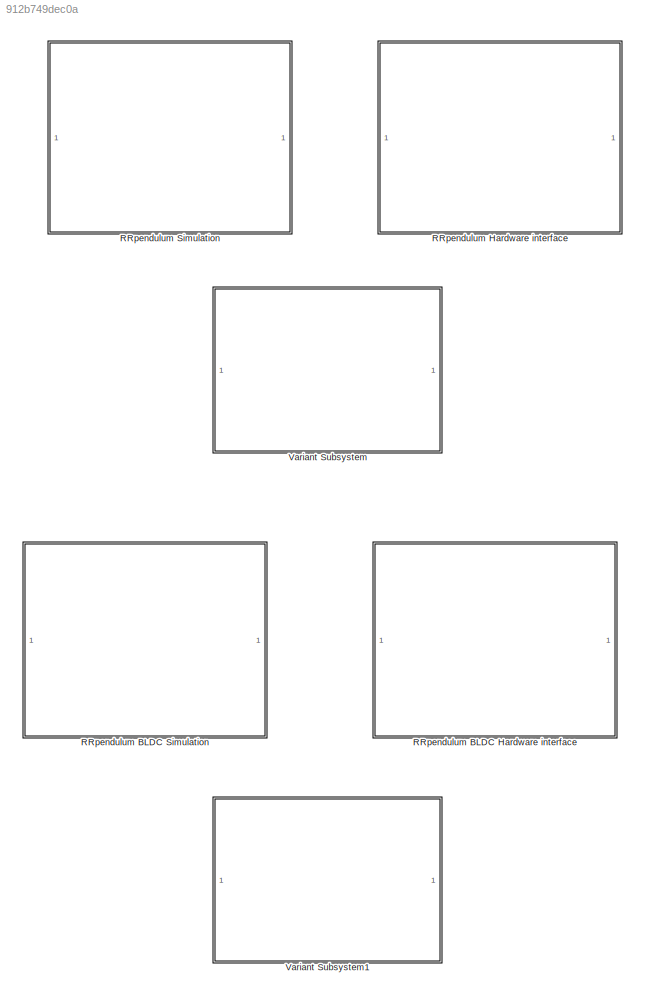
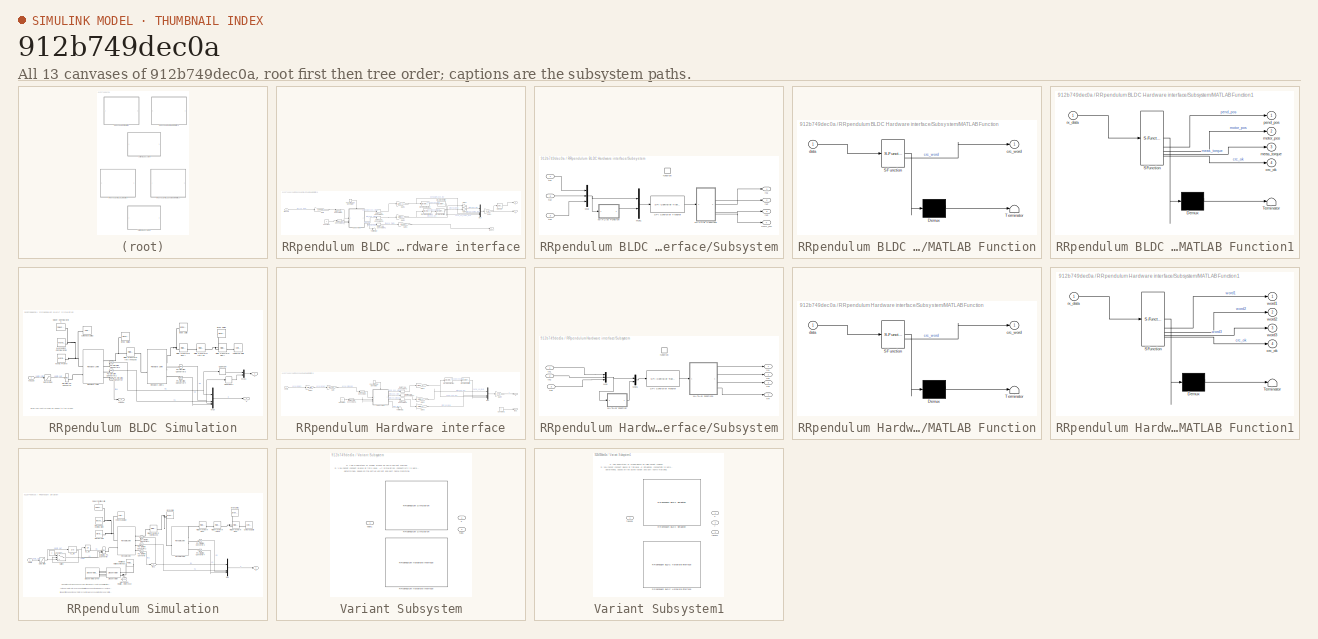
[diagram: thumbnail index - all 13 canvases of the model, root first then tree order]
MODEL slx_912b749dec0a
KIND library
CONFIG AbsTol = auto
CONFIG EnableMultiTasking = off
CONFIG FixedStep = auto
CONFIG MaxStep = auto
CONFIG MinStep = auto
CONFIG RelTol = 1e-3
CONFIG SampleTimeConstraint = Unconstrained
CONFIG SolverName = VariableStepAuto
CONFIG StartTime = 0.0
CONFIG StopTime = 10.0
BLOCK [SubSystem] RRpendulum BLDC Hardware interface
  VariantControl = (codegen)
BLOCK [Constant] RRpendulum BLDC Hardware interface/Constant
  OutDataTypeStr = int16
  Value = 0
BLOCK [DataTypeConversion] RRpendulum BLDC Hardware interface/Data Type Conversion
  OutDataTypeStr = int16
  RndMeth = Floor
  SaturateOnIntegerOverflow = off
BLOCK [DataTypeConversion] RRpendulum BLDC Hardware interface/Data Type Conversion1
  OutDataTypeStr = double
  RndMeth = Floor
  SaturateOnIntegerOverflow = off
BLOCK [DataTypeConversion] RRpendulum BLDC Hardware interface/Data Type Conversion2
  OutDataTypeStr = double
  RndMeth = Floor
  SaturateOnIntegerOverflow = off
BLOCK [DataTypeConversion] RRpendulum BLDC Hardware interface/Data Type Conversion3
  OutDataTypeStr = int16
  RndMeth = Floor
  SaturateOnIntegerOverflow = off
BLOCK [DataTypeConversion] RRpendulum BLDC Hardware interface/Data Type Conversion5
  OutDataTypeStr = double
  RndMeth = Floor
  SaturateOnIntegerOverflow = off
BLOCK [Reference] RRpendulum BLDC Hardware interface/Discrete Derivative  REF=simulink/Discrete/Discrete Derivative
  SourceBlock = simulink/Discrete/Discrete Derivative
  SourceType = Discrete Derivative
BLOCK [Reference] RRpendulum BLDC Hardware interface/Discrete Derivative1  REF=simulink/Discrete/Discrete Derivative
  SourceBlock = simulink/Discrete/Discrete Derivative
  SourceType = Discrete Derivative
BLOCK [DiscreteFir] RRpendulum BLDC Hardware interface/Discrete FIR Filter
  CloseFcn = dspblkCoreblockFVToolHelper(gcbh,'close');
  Coefficients = ones(1,Nv2Filt)/Nv2Filt
  CopyFcn = dspblkCoreblockFVToolHelper(gcbh,'copy');
  DeleteFcn = dspblkCoreblockFVToolHelper(gcbh,'close');
  InputPortMap = u0
  LoadFcn = dspblkCoreblockFVToolHelper(gcbh,'load');
  ModelCloseFcn = dspblkCoreblockFVToolHelper(gcbh,'close');
  OutputPortMap = o0
  PostSaveFcn = dspblkCoreblockFVToolHelper(gcbh,'postsave');
  PreSaveFcn = dspblkCoreblockFVToolHelper(gcbh,'presave');
BLOCK [DiscreteFir] RRpendulum BLDC Hardware interface/Discrete FIR Filter1
  CloseFcn = dspblkCoreblockFVToolHelper(gcbh,'close');
  Coefficients = ones(1,Nv1Filt)/Nv1Filt
  CopyFcn = dspblkCoreblockFVToolHelper(gcbh,'copy');
  DeleteFcn = dspblkCoreblockFVToolHelper(gcbh,'close');
  InputPortMap = u0
  LoadFcn = dspblkCoreblockFVToolHelper(gcbh,'load');
  ModelCloseFcn = dspblkCoreblockFVToolHelper(gcbh,'close');
  OutputPortMap = o0
  PostSaveFcn = dspblkCoreblockFVToolHelper(gcbh,'postsave');
  PreSaveFcn = dspblkCoreblockFVToolHelper(gcbh,'presave');
BLOCK [FunctionCallGenerator] RRpendulum BLDC Hardware interface/Function-Call Generator
  SampleTime = t_sample
BLOCK [Gain] RRpendulum BLDC Hardware interface/Gain
  Gain = -100000
BLOCK [Gain] RRpendulum BLDC Hardware interface/Gain1
  Gain = 1/enc_cpt
BLOCK [Gain] RRpendulum BLDC Hardware interface/Gain2
  Gain = 1/mot_cpt
BLOCK [Gain] RRpendulum BLDC Hardware interface/Gain4
  Gain = 2*pi
BLOCK [Gain] RRpendulum BLDC Hardware interface/Gain6
  Gain = -1/100000
BLOCK [Gain] RRpendulum BLDC Hardware interface/Gain7
  Gain = -1
BLOCK [Gain] RRpendulum BLDC Hardware interface/Gain8
  Gain = -1
BLOCK [Mux] RRpendulum BLDC Hardware interface/Mux
  DisplayOption = bar
BLOCK [Selector] RRpendulum BLDC Hardware interface/Selector
  IndexOptions = Index vector (dialog)
  Indices = [1 3]
  InputPortWidth = 4
  OutputSizes = 1
BLOCK [SubSystem] RRpendulum BLDC Hardware interface/Subsystem
BLOCK [Outport] RRpendulum BLDC Hardware interface/Subsystem/CRC_OK
  Port = 4
BLOCK [SubSystem] RRpendulum BLDC Hardware interface/Subsystem/MATLAB Function
  ErrorFcn = Stateflow.Translate.translate
  PermitHierarchicalResolution = ExplicitOnly
  SFBlockType = MATLAB Function
  TreatAsAtomicUnit = on
BLOCK [Demux] RRpendulum BLDC Hardware interface/Subsystem/MATLAB Function/ Demux 
  Outputs = 1
BLOCK [S-Function] RRpendulum BLDC Hardware interface/Subsystem/MATLAB Function/ SFunction 
  EnableBusSupport = off
  FunctionName = sf_sfun
  PortCounts = [1 2]
  SFcnIsStateOwnerBlock = off
  SFunctionDeploymentMode = off
  Tag = Stateflow S-Function 3
BLOCK [Terminator] RRpendulum BLDC Hardware interface/Subsystem/MATLAB Function/ Terminator 
BLOCK [Outport] RRpendulum BLDC Hardware interface/Subsystem/MATLAB Function/crc_word
BLOCK [Inport] RRpendulum BLDC Hardware interface/Subsystem/MATLAB Function/data
BLOCK [SubSystem] RRpendulum BLDC Hardware interface/Subsystem/MATLAB Function1
  ErrorFcn = Stateflow.Translate.translate
  PermitHierarchicalResolution = ExplicitOnly
  SFBlockType = MATLAB Function
  TreatAsAtomicUnit = on
BLOCK [Demux] RRpendulum BLDC Hardware interface/Subsystem/MATLAB Function1/ Demux 
  Outputs = 1
BLOCK [S-Function] RRpendulum BLDC Hardware interface/Subsystem/MATLAB Function1/ SFunction 
  EnableBusSupport = off
  FunctionName = sf_sfun
  PortCounts = [1 5]
  SFcnIsStateOwnerBlock = off
  SFunctionDeploymentMode = off
  Tag = Stateflow S-Function 4
BLOCK [Terminator] RRpendulum BLDC Hardware interface/Subsystem/MATLAB Function1/ Terminator 
BLOCK [Outport] RRpendulum BLDC Hardware interface/Subsystem/MATLAB Function1/crc_ok
  Port = 4
BLOCK [Outport] RRpendulum BLDC Hardware interface/Subsystem/MATLAB Function1/meas_torque
  Port = 3
BLOCK [Outport] RRpendulum BLDC Hardware interface/Subsystem/MATLAB Function1/motor_pos
  Port = 2
BLOCK [Outport] RRpendulum BLDC Hardware interface/Subsystem/MATLAB Function1/pend_pos
BLOCK [Inport] RRpendulum BLDC Hardware interface/Subsystem/MATLAB Function1/rx_data
BLOCK [Mux] RRpendulum BLDC Hardware interface/Subsystem/Mux
  DisplayOption = bar
  Inputs = 3
BLOCK [Mux] RRpendulum BLDC Hardware interface/Subsystem/Mux1
  DisplayOption = bar
  Inputs = 2
BLOCK [Reference] RRpendulum BLDC Hardware interface/Subsystem/SPI Controller Transfer  REF=raspberrypiCommlib/SPI Controller Transfer
  SourceBlock = raspberrypiCommlib/SPI Controller Transfer
  SourceType = codertarget.raspi.internal.SPIMasterTransfer
BLOCK [TriggerPort] RRpendulum BLDC Hardware interface/Subsystem/function
  StatesWhenEnabling = held
  TriggerType = function-call
  VariantControl = (inherit)
BLOCK [Outport] RRpendulum BLDC Hardware interface/Subsystem/rx1
BLOCK [Outport] RRpendulum BLDC Hardware interface/Subsystem/rx2
  Port = 2
BLOCK [Outport] RRpendulum BLDC Hardware interface/Subsystem/rx3
  Port = 3
BLOCK [Inport] RRpendulum BLDC Hardware interface/Subsystem/tx1
BLOCK [Inport] RRpendulum BLDC Hardware interface/Subsystem/tx2
  Port = 2
BLOCK [Inport] RRpendulum BLDC Hardware interface/Subsystem/tx3
  Port = 3
BLOCK [Terminator] RRpendulum BLDC Hardware interface/Terminator
BLOCK [Outport] RRpendulum BLDC Hardware interface/tau1cv
  Port = 3
BLOCK [Inport] RRpendulum BLDC Hardware interface/tau1sp
BLOCK [Outport] RRpendulum BLDC Hardware interface/x
BLOCK [Outport] RRpendulum BLDC Hardware interface/y
  Port = 2
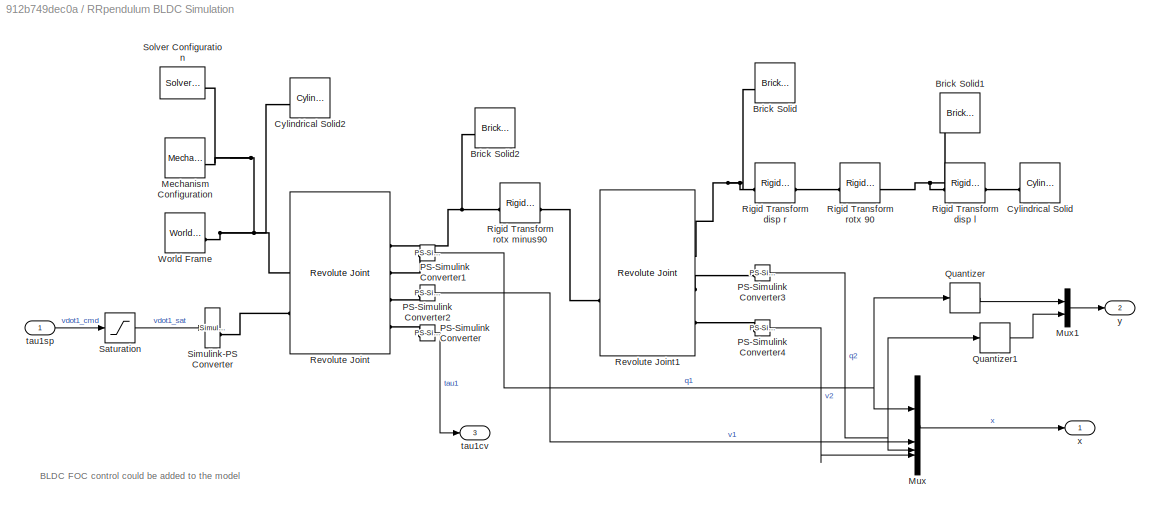
BLOCK [SubSystem] RRpendulum BLDC Simulation
  VariantControl = (sim)
BLOCK [Reference] RRpendulum BLDC Simulation/Brick Solid  REF=sm_lib/Body Elements/Brick Solid
  SourceBlock = sm_lib/Body Elements/Brick Solid
  SourceType = Brick Solid
BLOCK [Reference] RRpendulum BLDC Simulation/Brick Solid1  REF=sm_lib/Body Elements/Brick Solid
  SourceBlock = sm_lib/Body Elements/Brick Solid
  SourceType = Brick Solid
BLOCK [Reference] RRpendulum BLDC Simulation/Brick Solid2  REF=sm_lib/Body Elements/Brick Solid
  SourceBlock = sm_lib/Body Elements/Brick Solid
  SourceType = Brick Solid
BLOCK [Reference] RRpendulum BLDC Simulation/Cylindrical Solid  REF=sm_lib/Body Elements/Cylindrical Solid
  NameLocation = top
  SourceBlock = sm_lib/Body Elements/Cylindrical Solid
  SourceType = Cylindrical Solid
BLOCK [Reference] RRpendulum BLDC Simulation/Cylindrical Solid2  REF=sm_lib/Body Elements/Cylindrical Solid
  SourceBlock = sm_lib/Body Elements/Cylindrical Solid
  SourceType = Cylindrical Solid
BLOCK [Reference] RRpendulum BLDC Simulation/Mechanism Configuration  REF=sm_lib/Utilities/Mechanism
Configuration
  SourceBlock = sm_lib/Utilities/Mechanism\nConfiguration
  SourceType = Mechanism\nConfiguration
BLOCK [Mux] RRpendulum BLDC Simulation/Mux
  DisplayOption = bar
BLOCK [Mux] RRpendulum BLDC Simulation/Mux1
  DisplayOption = bar
  Inputs = 2
BLOCK [Reference] RRpendulum BLDC Simulation/PS-Simulink Converter  REF=nesl_utility/PS-Simulink
Converter
  SourceBlock = nesl_utility/PS-Simulink\nConverter
  SourceType = PS-Simulink\nConverter
BLOCK [Reference] RRpendulum BLDC Simulation/PS-Simulink Converter1  REF=nesl_utility/PS-Simulink
Converter
  SourceBlock = nesl_utility/PS-Simulink\nConverter
  SourceType = PS-Simulink\nConverter
BLOCK [Reference] RRpendulum BLDC Simulation/PS-Simulink Converter2  REF=nesl_utility/PS-Simulink
Converter
  SourceBlock = nesl_utility/PS-Simulink\nConverter
  SourceType = PS-Simulink\nConverter
BLOCK [Reference] RRpendulum BLDC Simulation/PS-Simulink Converter3  REF=nesl_utility/PS-Simulink
Converter
  SourceBlock = nesl_utility/PS-Simulink\nConverter
  SourceType = PS-Simulink\nConverter
BLOCK [Reference] RRpendulum BLDC Simulation/PS-Simulink Converter4  REF=nesl_utility/PS-Simulink
Converter
  SourceBlock = nesl_utility/PS-Simulink\nConverter
  SourceType = PS-Simulink\nConverter
BLOCK [Quantizer] RRpendulum BLDC Simulation/Quantizer
  QuantizationInterval = 2*pi/qi_cpt(1)
BLOCK [Quantizer] RRpendulum BLDC Simulation/Quantizer1
  QuantizationInterval = 2*pi/qi_cpt(2)
BLOCK [Reference] RRpendulum BLDC Simulation/Revolute Joint  REF=sm_lib/Joints/Revolute Joint
  SourceBlock = sm_lib/Joints/Revolute Joint
  SourceType = Revolute Joint
BLOCK [Reference] RRpendulum BLDC Simulation/Revolute Joint1  REF=sm_lib/Joints/Revolute Joint
  SourceBlock = sm_lib/Joints/Revolute Joint
  SourceType = Revolute Joint
BLOCK [Reference] RRpendulum BLDC Simulation/Rigid Transform disp l  REF=sm_lib/Frames and
Transforms/Rigid
Transform
  SourceBlock = sm_lib/Frames and\nTransforms/Rigid\nTransform
  SourceType = Rigid\nTransform
BLOCK [Reference] RRpendulum BLDC Simulation/Rigid Transform disp r  REF=sm_lib/Frames and
Transforms/Rigid
Transform
  SourceBlock = sm_lib/Frames and\nTransforms/Rigid\nTransform
  SourceType = Rigid\nTransform
BLOCK [Reference] RRpendulum BLDC Simulation/Rigid Transform rotx 90  REF=sm_lib/Frames and
Transforms/Rigid
Transform
  SourceBlock = sm_lib/Frames and\nTransforms/Rigid\nTransform
  SourceType = Rigid\nTransform
BLOCK [Reference] RRpendulum BLDC Simulation/Rigid Transform rotx minus90  REF=sm_lib/Frames and
Transforms/Rigid
Transform
  SourceBlock = sm_lib/Frames and\nTransforms/Rigid\nTransform
  SourceType = Rigid\nTransform
BLOCK [Saturate] RRpendulum BLDC Simulation/Saturation
  LowerLimit = -satlimits(1)
  UpperLimit = satlimits(1)
BLOCK [Reference] RRpendulum BLDC Simulation/Simulink-PS Converter  REF=nesl_utility/Simulink-PS
Converter
  SourceBlock = nesl_utility/Simulink-PS\nConverter
  SourceType = Simulink-PS\nConverter
BLOCK [Reference] RRpendulum BLDC Simulation/Solver Configuration  REF=nesl_utility/Solver
Configuration
  SourceBlock = nesl_utility/Solver\nConfiguration
  SourceType = Solver\nConfiguration
BLOCK [Reference] RRpendulum BLDC Simulation/World Frame  REF=sm_lib/Frames and
Transforms/World Frame
  SourceBlock = sm_lib/Frames and\nTransforms/World Frame
  SourceType = World Frame
BLOCK [Outport] RRpendulum BLDC Simulation/tau1cv
  Port = 3
BLOCK [Inport] RRpendulum BLDC Simulation/tau1sp
BLOCK [Outport] RRpendulum BLDC Simulation/x
  PortDimensions = [4,1]
BLOCK [Outport] RRpendulum BLDC Simulation/y
  Port = 2
  PortDimensions = [2,1]
BLOCK [SubSystem] RRpendulum Hardware interface
  VariantControl = (codegen)
BLOCK [Constant] RRpendulum Hardware interface/Constant
  OutDataTypeStr = int16
  Value = 0
BLOCK [Constant] RRpendulum Hardware interface/Constant1
  Value = 0
BLOCK [DataTypeConversion] RRpendulum Hardware interface/Data Type Conversion
  OutDataTypeStr = int16
  RndMeth = Floor
  SaturateOnIntegerOverflow = off
BLOCK [DataTypeConversion] RRpendulum Hardware interface/Data Type Conversion1
  OutDataTypeStr = double
  RndMeth = Floor
  SaturateOnIntegerOverflow = off
BLOCK [DataTypeConversion] RRpendulum Hardware interface/Data Type Conversion2
  OutDataTypeStr = double
  RndMeth = Floor
  SaturateOnIntegerOverflow = off
BLOCK [DataTypeConversion] RRpendulum Hardware interface/Data Type Conversion4
  OutDataTypeStr = double
  RndMeth = Floor
  SaturateOnIntegerOverflow = off
BLOCK [DataTypeConversion] RRpendulum Hardware interface/Data Type Conversion5
  OutDataTypeStr = int16
  RndMeth = Floor
  SaturateOnIntegerOverflow = off
BLOCK [Reference] RRpendulum Hardware interface/Discrete Derivative  REF=simulink/Discrete/Discrete Derivative
  SourceBlock = simulink/Discrete/Discrete Derivative
  SourceType = Discrete Derivative
BLOCK [DiscreteFir] RRpendulum Hardware interface/Discrete FIR Filter
  CloseFcn = dspblkCoreblockFVToolHelper(gcbh,'close');
  Coefficients = ones(1,Nv2filt)/Nv2filt
  CopyFcn = dspblkCoreblockFVToolHelper(gcbh,'copy');
  DeleteFcn = dspblkCoreblockFVToolHelper(gcbh,'close');
  InputPortMap = u0
  LoadFcn = dspblkCoreblockFVToolHelper(gcbh,'load');
  ModelCloseFcn = dspblkCoreblockFVToolHelper(gcbh,'close');
  OutputPortMap = o0
  PostSaveFcn = dspblkCoreblockFVToolHelper(gcbh,'postsave');
  PreSaveFcn = dspblkCoreblockFVToolHelper(gcbh,'presave');
BLOCK [FunctionCallGenerator] RRpendulum Hardware interface/Function-Call Generator
  SampleTime = t_sample
BLOCK [Gain] RRpendulum Hardware interface/Gain
  Gain = mot_spt
BLOCK [Gain] RRpendulum Hardware interface/Gain1
  Gain = 1/enc_cpt
BLOCK [Gain] RRpendulum Hardware interface/Gain2
  Gain = 1/mot_spt
BLOCK [Gain] RRpendulum Hardware interface/Gain3
  Gain = 1/mot_spt
BLOCK [Gain] RRpendulum Hardware interface/Gain4
  Gain = 2*pi
BLOCK [Gain] RRpendulum Hardware interface/Gain5
  Gain = 1/(2*pi)
BLOCK [Mux] RRpendulum Hardware interface/Mux
  DisplayOption = bar
BLOCK [SubSystem] RRpendulum Hardware interface/Subsystem
BLOCK [SubSystem] RRpendulum Hardware interface/Subsystem/MATLAB Function
  ErrorFcn = Stateflow.Translate.translate
  PermitHierarchicalResolution = ExplicitOnly
  SFBlockType = MATLAB Function
  TreatAsAtomicUnit = on
BLOCK [Demux] RRpendulum Hardware interface/Subsystem/MATLAB Function/ Demux 
  Outputs = 1
BLOCK [S-Function] RRpendulum Hardware interface/Subsystem/MATLAB Function/ SFunction 
  EnableBusSupport = off
  FunctionName = sf_sfun
  PortCounts = [1 2]
  SFcnIsStateOwnerBlock = off
  SFunctionDeploymentMode = off
  Tag = Stateflow S-Function 1
BLOCK [Terminator] RRpendulum Hardware interface/Subsystem/MATLAB Function/ Terminator 
BLOCK [Outport] RRpendulum Hardware interface/Subsystem/MATLAB Function/crc_word
BLOCK [Inport] RRpendulum Hardware interface/Subsystem/MATLAB Function/data
BLOCK [SubSystem] RRpendulum Hardware interface/Subsystem/MATLAB Function1
  ErrorFcn = Stateflow.Translate.translate
  PermitHierarchicalResolution = ExplicitOnly
  SFBlockType = MATLAB Function
  TreatAsAtomicUnit = on
BLOCK [Demux] RRpendulum Hardware interface/Subsystem/MATLAB Function1/ Demux 
  Outputs = 1
BLOCK [S-Function] RRpendulum Hardware interface/Subsystem/MATLAB Function1/ SFunction 
  EnableBusSupport = off
  FunctionName = sf_sfun
  PortCounts = [1 5]
  SFcnIsStateOwnerBlock = off
  SFunctionDeploymentMode = off
  Tag = Stateflow S-Function 2
BLOCK [Terminator] RRpendulum Hardware interface/Subsystem/MATLAB Function1/ Terminator 
BLOCK [Outport] RRpendulum Hardware interface/Subsystem/MATLAB Function1/crc_ok
  Port = 4
BLOCK [Inport] RRpendulum Hardware interface/Subsystem/MATLAB Function1/rx_data
BLOCK [Outport] RRpendulum Hardware interface/Subsystem/MATLAB Function1/word1
BLOCK [Outport] RRpendulum Hardware interface/Subsystem/MATLAB Function1/word2
  Port = 2
BLOCK [Outport] RRpendulum Hardware interface/Subsystem/MATLAB Function1/word3
  Port = 3
BLOCK [Mux] RRpendulum Hardware interface/Subsystem/Mux
  DisplayOption = bar
  Inputs = 3
BLOCK [Mux] RRpendulum Hardware interface/Subsystem/Mux1
  DisplayOption = bar
  Inputs = 2
BLOCK [Reference] RRpendulum Hardware interface/Subsystem/SPI Controller Transfer  REF=raspberrypiCommlib/SPI Controller Transfer
  SourceBlock = raspberrypiCommlib/SPI Controller Transfer
  SourceType = codertarget.raspi.internal.SPIMasterTransfer
BLOCK [TriggerPort] RRpendulum Hardware interface/Subsystem/function
  StatesWhenEnabling = held
  TriggerType = function-call
  VariantControl = (inherit)
BLOCK [Outport] RRpendulum Hardware interface/Subsystem/rx1
BLOCK [Outport] RRpendulum Hardware interface/Subsystem/rx2
  Port = 2
BLOCK [Outport] RRpendulum Hardware interface/Subsystem/rx3
  Port = 3
BLOCK [Outport] RRpendulum Hardware interface/Subsystem/rx4
  Port = 4
BLOCK [Inport] RRpendulum Hardware interface/Subsystem/tx1
BLOCK [Inport] RRpendulum Hardware interface/Subsystem/tx2
  Port = 2
BLOCK [Inport] RRpendulum Hardware interface/Subsystem/tx3
  Port = 3
BLOCK [Terminator] RRpendulum Hardware interface/Terminator1
BLOCK [Outport] RRpendulum Hardware interface/tau1
  Port = 2
BLOCK [Inport] RRpendulum Hardware interface/vdot1
BLOCK [Outport] RRpendulum Hardware interface/x
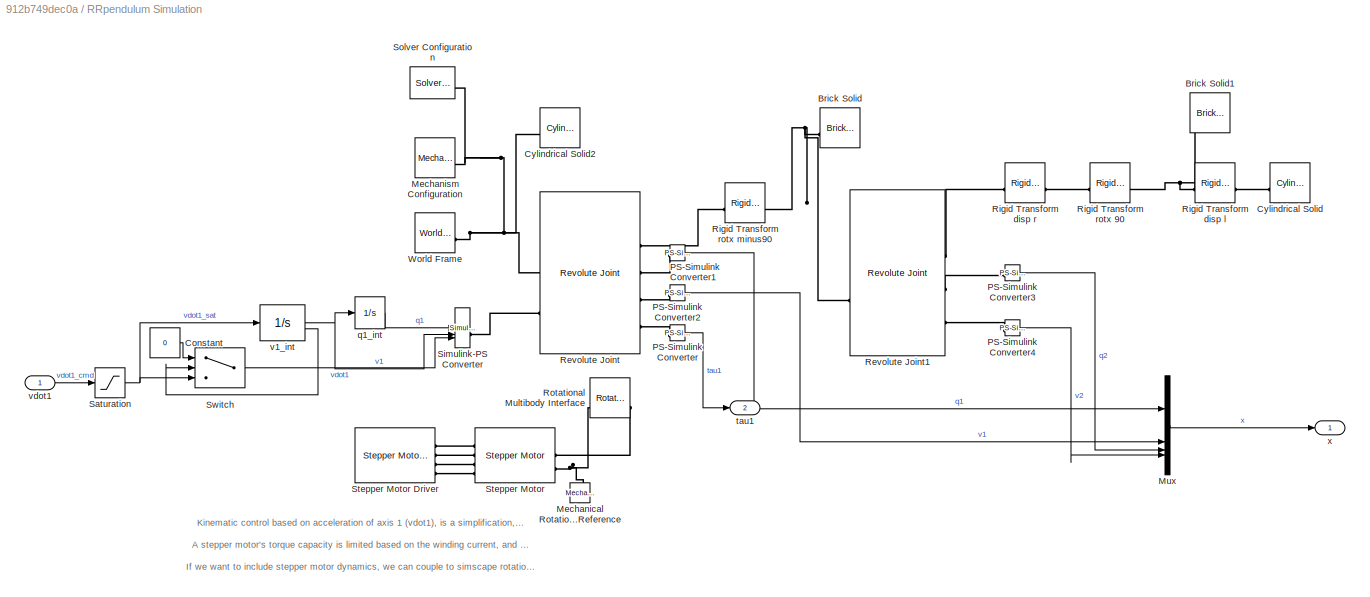
BLOCK [SubSystem] RRpendulum Simulation
  VariantControl = (sim)
BLOCK [Reference] RRpendulum Simulation/Brick Solid  REF=sm_lib/Body Elements/Brick Solid
  SourceBlock = sm_lib/Body Elements/Brick Solid
  SourceType = Brick Solid
BLOCK [Reference] RRpendulum Simulation/Brick Solid1  REF=sm_lib/Body Elements/Brick Solid
  SourceBlock = sm_lib/Body Elements/Brick Solid
  SourceType = Brick Solid
BLOCK [Constant] RRpendulum Simulation/Constant
  Value = 0
BLOCK [Reference] RRpendulum Simulation/Cylindrical Solid  REF=sm_lib/Body Elements/Cylindrical Solid
  NameLocation = top
  SourceBlock = sm_lib/Body Elements/Cylindrical Solid
  SourceType = Cylindrical Solid
BLOCK [Reference] RRpendulum Simulation/Cylindrical Solid2  REF=sm_lib/Body Elements/Cylindrical Solid
  SourceBlock = sm_lib/Body Elements/Cylindrical Solid
  SourceType = Cylindrical Solid
BLOCK [Reference] RRpendulum Simulation/Mechanical Rotational Reference  REF=fl_lib/Mechanical/Rotational Elements/Mechanical
Rotational Reference
  Commented = on
  NameLocation = right
  SourceBlock = fl_lib/Mechanical/Rotational Elements/Mechanical\nRotational Reference
  SourceType = Mechanical\nRotational Reference
BLOCK [Reference] RRpendulum Simulation/Mechanism Configuration  REF=sm_lib/Utilities/Mechanism
Configuration
  SourceBlock = sm_lib/Utilities/Mechanism\nConfiguration
  SourceType = Mechanism\nConfiguration
BLOCK [Mux] RRpendulum Simulation/Mux
  DisplayOption = bar
BLOCK [Reference] RRpendulum Simulation/PS-Simulink Converter  REF=nesl_utility/PS-Simulink
Converter
  SourceBlock = nesl_utility/PS-Simulink\nConverter
  SourceType = PS-Simulink\nConverter
BLOCK [Reference] RRpendulum Simulation/PS-Simulink Converter1  REF=nesl_utility/PS-Simulink
Converter
  SourceBlock = nesl_utility/PS-Simulink\nConverter
  SourceType = PS-Simulink\nConverter
BLOCK [Reference] RRpendulum Simulation/PS-Simulink Converter2  REF=nesl_utility/PS-Simulink
Converter
  SourceBlock = nesl_utility/PS-Simulink\nConverter
  SourceType = PS-Simulink\nConverter
BLOCK [Reference] RRpendulum Simulation/PS-Simulink Converter3  REF=nesl_utility/PS-Simulink
Converter
  SourceBlock = nesl_utility/PS-Simulink\nConverter
  SourceType = PS-Simulink\nConverter
BLOCK [Reference] RRpendulum Simulation/PS-Simulink Converter4  REF=nesl_utility/PS-Simulink
Converter
  SourceBlock = nesl_utility/PS-Simulink\nConverter
  SourceType = PS-Simulink\nConverter
BLOCK [Reference] RRpendulum Simulation/Revolute Joint  REF=sm_lib/Joints/Revolute Joint
  SourceBlock = sm_lib/Joints/Revolute Joint
  SourceType = Revolute Joint
BLOCK [Reference] RRpendulum Simulation/Revolute Joint1  REF=sm_lib/Joints/Revolute Joint
  SourceBlock = sm_lib/Joints/Revolute Joint
  SourceType = Revolute Joint
BLOCK [Reference] RRpendulum Simulation/Rigid Transform disp l  REF=sm_lib/Frames and
Transforms/Rigid
Transform
  SourceBlock = sm_lib/Frames and\nTransforms/Rigid\nTransform
  SourceType = Rigid\nTransform
BLOCK [Reference] RRpendulum Simulation/Rigid Transform disp r  REF=sm_lib/Frames and
Transforms/Rigid
Transform
  SourceBlock = sm_lib/Frames and\nTransforms/Rigid\nTransform
  SourceType = Rigid\nTransform
BLOCK [Reference] RRpendulum Simulation/Rigid Transform rotx 90  REF=sm_lib/Frames and
Transforms/Rigid
Transform
  SourceBlock = sm_lib/Frames and\nTransforms/Rigid\nTransform
  SourceType = Rigid\nTransform
BLOCK [Reference] RRpendulum Simulation/Rigid Transform rotx minus90  REF=sm_lib/Frames and
Transforms/Rigid
Transform
  SourceBlock = sm_lib/Frames and\nTransforms/Rigid\nTransform
  SourceType = Rigid\nTransform
BLOCK [Reference] RRpendulum Simulation/Rotational Multibody Interface  REF=fl_lib/Mechanical/Multibody Interfaces/Rotational Multibody
Interface
  Commented = on
  SourceBlock = fl_lib/Mechanical/Multibody Interfaces/Rotational Multibody\nInterface
  SourceType = Rotational Multibody\nInterface
BLOCK [Saturate] RRpendulum Simulation/Saturation
  LowerLimit = -satlimits(1)
  UpperLimit = satlimits(1)
BLOCK [Reference] RRpendulum Simulation/Simulink-PS Converter  REF=nesl_utility/Simulink-PS
Converter
  SourceBlock = nesl_utility/Simulink-PS\nConverter
  SourceType = Simulink-PS\nConverter
BLOCK [Reference] RRpendulum Simulation/Solver Configuration  REF=nesl_utility/Solver
Configuration
  SourceBlock = nesl_utility/Solver\nConfiguration
  SourceType = Solver\nConfiguration
BLOCK [Reference] RRpendulum Simulation/Stepper Motor  REF=ee_lib/Electromechanical/Reluctance & Stepper/Stepper Motor
  Commented = on
  SourceBlock = ee_lib/Electromechanical/Reluctance & Stepper/Stepper Motor
  SourceType = Stepper Motor
BLOCK [Reference] RRpendulum Simulation/Stepper Motor Driver  REF=ee_lib/Electromechanical/Reluctance & Stepper/Stepper Motor Driver
  Commented = on
  SourceBlock = ee_lib/Electromechanical/Reluctance & Stepper/Stepper Motor Driver
  SourceType = Stepper Motor Driver
BLOCK [Switch] RRpendulum Simulation/Switch
  Criteria = u2 ~= 0
  InputSameDT = off
  SaturateOnIntegerOverflow = off
BLOCK [Reference] RRpendulum Simulation/World Frame  REF=sm_lib/Frames and
Transforms/World Frame
  SourceBlock = sm_lib/Frames and\nTransforms/World Frame
  SourceType = World Frame
BLOCK [Integrator] RRpendulum Simulation/q1_int
  InitialCondition = initstate(1)
  LowerSaturationLimit = -satlimits(3)
  UpperSaturationLimit = satlimits(3)
BLOCK [Outport] RRpendulum Simulation/tau1
  Port = 2
BLOCK [Integrator] RRpendulum Simulation/v1_int
  InitialCondition = initstate(2)
  LimitOutput = on
  LowerSaturationLimit = -satlimits(2)
  ShowSaturationPort = on
  UpperSaturationLimit = satlimits(2)
BLOCK [Inport] RRpendulum Simulation/vdot1
BLOCK [Outport] RRpendulum Simulation/x
  PortDimensions = [4,1]
BLOCK [SubSystem] Variant Subsystem
  Variant = on
  VariantControlMode = sim codegen switching
BLOCK [Reference] Variant Subsystem/RRpendulum Hardware interface  REF=$bdroot/RRpendulum Hardware interface
  SourceBlock = $bdroot/RRpendulum Hardware interface
BLOCK [Reference] Variant Subsystem/RRpendulum Simulation  REF=$bdroot/RRpendulum Simulation
  SourceBlock = $bdroot/RRpendulum Simulation
BLOCK [Outport] Variant Subsystem/tau1
  Port = 2
BLOCK [Inport] Variant Subsystem/vdot1
BLOCK [Outport] Variant Subsystem/x
BLOCK [SubSystem] Variant Subsystem1
  Variant = on
  VariantControlMode = sim codegen switching
BLOCK [Reference] Variant Subsystem1/RRpendulum BLDC Hardware interface  REF=$bdroot/RRpendulum BLDC Hardware interface
  SourceBlock = $bdroot/RRpendulum BLDC Hardware interface
BLOCK [Reference] Variant Subsystem1/RRpendulum BLDC Simulation  REF=$bdroot/RRpendulum BLDC Simulation
  SourceBlock = $bdroot/RRpendulum BLDC Simulation
BLOCK [Outport] Variant Subsystem1/tau1cv
  Port = 3
BLOCK [Inport] Variant Subsystem1/tau1sp
BLOCK [Outport] Variant Subsystem1/x
BLOCK [Outport] Variant Subsystem1/y
  Port = 2
ANNOTATION RRpendulum BLDC Simulation: BLDC FOC control could be added to the model
ANNOTATION RRpendulum Simulation: Kinematic control based on acceleration of axis 1 (vdot1), is a simplification, ignoring the dynamics of the stepper motor. A stepper motor's torque capacity is limited based on the winding current, and further decreases with increasing velocity. If the torque (tau1) required by the dynamics is greater than the torque capacity of the stepper motor, it "skips" steps! If we want to include stepper m...<+61ch>
ANNOTATION Variant Subsystem: 1) Add Subsystem or Model blocks as valid variant choices. 2) You cannot connect blocks at this level. At simulation, connectivity is automatically determined, based on the active variant and port name matching.
ANNOTATION Variant Subsystem1: 1) Add Subsystem or Model blocks as valid variant choices. 2) You cannot connect blocks at this level. At simulation, connectivity is automatically determined, based on the active variant and port name matching.
LINE RRpendulum BLDC Hardware interface/Constant:1 -> RRpendulum BLDC Hardware interface/Data Type Conversion3:1
LINE RRpendulum BLDC Hardware interface/Data Type Conversion1:1 -> RRpendulum BLDC Hardware interface/Gain6:1
LINE RRpendulum BLDC Hardware interface/Data Type Conversion2:1 -> RRpendulum BLDC Hardware interface/Gain1:1
NET RRpendulum BLDC Hardware interface/Data Type Conversion3:1 -> RRpendulum BLDC Hardware interface/Subsystem:2, RRpendulum BLDC Hardware interface/Subsystem:3
LINE RRpendulum BLDC Hardware interface/Data Type Conversion5:1 -> RRpendulum BLDC Hardware interface/Gain2:1
LINE RRpendulum BLDC Hardware interface/Data Type Conversion:1 -> RRpendulum BLDC Hardware interface/Subsystem:1
LINE RRpendulum BLDC Hardware interface/Discrete Derivative1:1 -> RRpendulum BLDC Hardware interface/Discrete FIR Filter1:1
LINE RRpendulum BLDC Hardware interface/Discrete Derivative:1 -> RRpendulum BLDC Hardware interface/Discrete FIR Filter:1
LINE RRpendulum BLDC Hardware interface/Discrete FIR Filter1:1 -> RRpendulum BLDC Hardware interface/Gain8:1
LINE RRpendulum BLDC Hardware interface/Discrete FIR Filter:1 -> RRpendulum BLDC Hardware interface/Mux:4
LINE RRpendulum BLDC Hardware interface/Function-Call Generator:1 -> RRpendulum BLDC Hardware interface/Subsystem:trigger
NET RRpendulum BLDC Hardware interface/Gain1:1 -> RRpendulum BLDC Hardware interface/Discrete Derivative:1, RRpendulum BLDC Hardware interface/Mux:3
NET RRpendulum BLDC Hardware interface/Gain2:1 -> RRpendulum BLDC Hardware interface/Discrete Derivative1:1, RRpendulum BLDC Hardware interface/Gain7:1
NET RRpendulum BLDC Hardware interface/Gain4:1 -> RRpendulum BLDC Hardware interface/Selector:1, RRpendulum BLDC Hardware interface/x:1
LINE RRpendulum BLDC Hardware interface/Gain6:1 -> RRpendulum BLDC Hardware interface/tau1cv:1
LINE RRpendulum BLDC Hardware interface/Gain7:1 -> RRpendulum BLDC Hardware interface/Mux:1
LINE RRpendulum BLDC Hardware interface/Gain8:1 -> RRpendulum BLDC Hardware interface/Mux:2
LINE RRpendulum BLDC Hardware interface/Gain:1 -> RRpendulum BLDC Hardware interface/Data Type Conversion:1
LINE RRpendulum BLDC Hardware interface/Mux:1 -> RRpendulum BLDC Hardware interface/Gain4:1
LINE RRpendulum BLDC Hardware interface/Selector:1 -> RRpendulum BLDC Hardware interface/y:1
LINE RRpendulum BLDC Hardware interface/Subsystem/MATLAB Function1:1 -> RRpendulum BLDC Hardware interface/Subsystem/rx1:1
LINE RRpendulum BLDC Hardware interface/Subsystem/MATLAB Function1:2 -> RRpendulum BLDC Hardware interface/Subsystem/rx2:1
LINE RRpendulum BLDC Hardware interface/Subsystem/MATLAB Function1:3 -> RRpendulum BLDC Hardware interface/Subsystem/rx3:1
LINE RRpendulum BLDC Hardware interface/Subsystem/MATLAB Function1:4 -> RRpendulum BLDC Hardware interface/Subsystem/CRC_OK:1
LINE RRpendulum BLDC Hardware interface/Subsystem/MATLAB Function:1 -> RRpendulum BLDC Hardware interface/Subsystem/Mux1:2
LINE RRpendulum BLDC Hardware interface/Subsystem/Mux1:1 -> RRpendulum BLDC Hardware interface/Subsystem/SPI Controller Transfer:1
NET RRpendulum BLDC Hardware interface/Subsystem/Mux:1 -> RRpendulum BLDC Hardware interface/Subsystem/MATLAB Function:1, RRpendulum BLDC Hardware interface/Subsystem/Mux1:1
LINE RRpendulum BLDC Hardware interface/Subsystem/SPI Controller Transfer:1 -> RRpendulum BLDC Hardware interface/Subsystem/MATLAB Function1:1
LINE RRpendulum BLDC Hardware interface/Subsystem/tx1:1 -> RRpendulum BLDC Hardware interface/Subsystem/Mux:1
LINE RRpendulum BLDC Hardware interface/Subsystem/tx2:1 -> RRpendulum BLDC Hardware interface/Subsystem/Mux:2
LINE RRpendulum BLDC Hardware interface/Subsystem/tx3:1 -> RRpendulum BLDC Hardware interface/Subsystem/Mux:3
LINE RRpendulum BLDC Hardware interface/Subsystem:1 -> RRpendulum BLDC Hardware interface/Data Type Conversion2:1
LINE RRpendulum BLDC Hardware interface/Subsystem:2 -> RRpendulum BLDC Hardware interface/Data Type Conversion5:1
LINE RRpendulum BLDC Hardware interface/Subsystem:3 -> RRpendulum BLDC Hardware interface/Data Type Conversion1:1
LINE RRpendulum BLDC Hardware interface/Subsystem:4 -> RRpendulum BLDC Hardware interface/Terminator:1
LINE RRpendulum BLDC Hardware interface/tau1sp:1 -> RRpendulum BLDC Hardware interface/Gain:1
LINE RRpendulum BLDC Simulation/Mux1:1 -> RRpendulum BLDC Simulation/y:1
LINE RRpendulum BLDC Simulation/Mux:1 -> RRpendulum BLDC Simulation/x:1
NET RRpendulum BLDC Simulation/PS-Simulink Converter1:1 -> RRpendulum BLDC Simulation/Mux:1, RRpendulum BLDC Simulation/Quantizer:1
LINE RRpendulum BLDC Simulation/PS-Simulink Converter2:1 -> RRpendulum BLDC Simulation/Mux:2
NET RRpendulum BLDC Simulation/PS-Simulink Converter3:1 -> RRpendulum BLDC Simulation/Mux:3, RRpendulum BLDC Simulation/Quantizer1:1
LINE RRpendulum BLDC Simulation/PS-Simulink Converter4:1 -> RRpendulum BLDC Simulation/Mux:4
LINE RRpendulum BLDC Simulation/PS-Simulink Converter:1 -> RRpendulum BLDC Simulation/tau1cv:1
LINE RRpendulum BLDC Simulation/Quantizer1:1 -> RRpendulum BLDC Simulation/Mux1:2
LINE RRpendulum BLDC Simulation/Quantizer:1 -> RRpendulum BLDC Simulation/Mux1:1
LINE RRpendulum BLDC Simulation/Saturation:1 -> RRpendulum BLDC Simulation/Simulink-PS Converter:1
LINE RRpendulum BLDC Simulation/tau1sp:1 -> RRpendulum BLDC Simulation/Saturation:1
LINE RRpendulum Hardware interface/Constant1:1 -> RRpendulum Hardware interface/tau1:1
LINE RRpendulum Hardware interface/Constant:1 -> RRpendulum Hardware interface/Data Type Conversion5:1
LINE RRpendulum Hardware interface/Data Type Conversion1:1 -> RRpendulum Hardware interface/Gain3:1
LINE RRpendulum Hardware interface/Data Type Conversion2:1 -> RRpendulum Hardware interface/Gain1:1
LINE RRpendulum Hardware interface/Data Type Conversion4:1 -> RRpendulum Hardware interface/Gain2:1
NET RRpendulum Hardware interface/Data Type Conversion5:1 -> RRpendulum Hardware interface/Subsystem:2, RRpendulum Hardware interface/Subsystem:3
LINE RRpendulum Hardware interface/Data Type Conversion:1 -> RRpendulum Hardware interface/Subsystem:1
LINE RRpendulum Hardware interface/Discrete Derivative:1 -> RRpendulum Hardware interface/Discrete FIR Filter:1
LINE RRpendulum Hardware interface/Discrete FIR Filter:1 -> RRpendulum Hardware interface/Mux:4
LINE RRpendulum Hardware interface/Function-Call Generator:1 -> RRpendulum Hardware interface/Subsystem:trigger
NET RRpendulum Hardware interface/Gain1:1 -> RRpendulum Hardware interface/Discrete Derivative:1, RRpendulum Hardware interface/Mux:3
LINE RRpendulum Hardware interface/Gain2:1 -> RRpendulum Hardware interface/Mux:1
LINE RRpendulum Hardware interface/Gain3:1 -> RRpendulum Hardware interface/Mux:2
LINE RRpendulum Hardware interface/Gain4:1 -> RRpendulum Hardware interface/x:1
LINE RRpendulum Hardware interface/Gain5:1 -> RRpendulum Hardware interface/Gain:1
LINE RRpendulum Hardware interface/Gain:1 -> RRpendulum Hardware interface/Data Type Conversion:1
LINE RRpendulum Hardware interface/Mux:1 -> RRpendulum Hardware interface/Gain4:1
LINE RRpendulum Hardware interface/Subsystem/MATLAB Function1:1 -> RRpendulum Hardware interface/Subsystem/rx1:1
LINE RRpendulum Hardware interface/Subsystem/MATLAB Function1:2 -> RRpendulum Hardware interface/Subsystem/rx2:1
LINE RRpendulum Hardware interface/Subsystem/MATLAB Function1:3 -> RRpendulum Hardware interface/Subsystem/rx3:1
LINE RRpendulum Hardware interface/Subsystem/MATLAB Function1:4 -> RRpendulum Hardware interface/Subsystem/rx4:1
LINE RRpendulum Hardware interface/Subsystem/MATLAB Function:1 -> RRpendulum Hardware interface/Subsystem/Mux1:2
LINE RRpendulum Hardware interface/Subsystem/Mux1:1 -> RRpendulum Hardware interface/Subsystem/SPI Controller Transfer:1
NET RRpendulum Hardware interface/Subsystem/Mux:1 -> RRpendulum Hardware interface/Subsystem/MATLAB Function:1, RRpendulum Hardware interface/Subsystem/Mux1:1
LINE RRpendulum Hardware interface/Subsystem/SPI Controller Transfer:1 -> RRpendulum Hardware interface/Subsystem/MATLAB Function1:1
LINE RRpendulum Hardware interface/Subsystem/tx1:1 -> RRpendulum Hardware interface/Subsystem/Mux:1
LINE RRpendulum Hardware interface/Subsystem/tx2:1 -> RRpendulum Hardware interface/Subsystem/Mux:2
LINE RRpendulum Hardware interface/Subsystem/tx3:1 -> RRpendulum Hardware interface/Subsystem/Mux:3
LINE RRpendulum Hardware interface/Subsystem:1 -> RRpendulum Hardware interface/Data Type Conversion2:1
LINE RRpendulum Hardware interface/Subsystem:2 -> RRpendulum Hardware interface/Data Type Conversion4:1
LINE RRpendulum Hardware interface/Subsystem:3 -> RRpendulum Hardware interface/Data Type Conversion1:1
LINE RRpendulum Hardware interface/Subsystem:4 -> RRpendulum Hardware interface/Terminator1:1
LINE RRpendulum Hardware interface/vdot1:1 -> RRpendulum Hardware interface/Gain5:1
LINE RRpendulum Simulation/Constant:1 -> RRpendulum Simulation/Switch:1
LINE RRpendulum Simulation/Mux:1 -> RRpendulum Simulation/x:1
LINE RRpendulum Simulation/PS-Simulink Converter1:1 -> RRpendulum Simulation/Mux:1
LINE RRpendulum Simulation/PS-Simulink Converter2:1 -> RRpendulum Simulation/Mux:2
LINE RRpendulum Simulation/PS-Simulink Converter3:1 -> RRpendulum Simulation/Mux:3
LINE RRpendulum Simulation/PS-Simulink Converter4:1 -> RRpendulum Simulation/Mux:4
LINE RRpendulum Simulation/PS-Simulink Converter:1 -> RRpendulum Simulation/tau1:1
NET RRpendulum Simulation/Saturation:1 -> RRpendulum Simulation/Switch:3, RRpendulum Simulation/v1_int:1
LINE RRpendulum Simulation/Switch:1 -> RRpendulum Simulation/Simulink-PS Converter:3
LINE RRpendulum Simulation/q1_int:1 -> RRpendulum Simulation/Simulink-PS Converter:1
NET RRpendulum Simulation/v1_int:1 -> RRpendulum Simulation/Simulink-PS Converter:2, RRpendulum Simulation/q1_int:1
LINE RRpendulum Simulation/v1_int:2 -> RRpendulum Simulation/Switch:2
LINE RRpendulum Simulation/vdot1:1 -> RRpendulum Simulation/Saturation:1
PNET net1: RRpendulum BLDC Simulation/Brick Solid1:LConn1 -- RRpendulum BLDC Simulation/Rigid Transform disp l:LConn1 -- RRpendulum BLDC Simulation/Rigid Transform rotx 90:RConn1
PNET net2: RRpendulum BLDC Simulation/Brick Solid2:LConn1 -- RRpendulum BLDC Simulation/Revolute Joint:RConn1 -- RRpendulum BLDC Simulation/Rigid Transform rotx minus90:LConn1
PNET net3: RRpendulum BLDC Simulation/Brick Solid:LConn1 -- RRpendulum BLDC Simulation/Revolute Joint1:RConn1 -- RRpendulum BLDC Simulation/Rigid Transform disp r:LConn1
PNET net4: RRpendulum BLDC Simulation/Cylindrical Solid2:LConn1 -- RRpendulum BLDC Simulation/Mechanism Configuration:RConn1 -- RRpendulum BLDC Simulation/Revolute Joint:LConn1 -- RRpendulum BLDC Simulation/Solver Configuration:RConn1 -- RRpendulum BLDC Simulation/World Frame:RConn1
PLINE RRpendulum BLDC Simulation/Cylindrical Solid:RConn1 -- RRpendulum BLDC Simulation/Rigid Transform disp l:RConn1
PLINE RRpendulum BLDC Simulation/PS-Simulink Converter1:LConn1 -- RRpendulum BLDC Simulation/Revolute Joint:RConn2
PLINE RRpendulum BLDC Simulation/PS-Simulink Converter2:LConn1 -- RRpendulum BLDC Simulation/Revolute Joint:RConn3
PLINE RRpendulum BLDC Simulation/PS-Simulink Converter3:LConn1 -- RRpendulum BLDC Simulation/Revolute Joint1:RConn2
PLINE RRpendulum BLDC Simulation/PS-Simulink Converter4:LConn1 -- RRpendulum BLDC Simulation/Revolute Joint1:RConn3
PLINE RRpendulum BLDC Simulation/PS-Simulink Converter:LConn1 -- RRpendulum BLDC Simulation/Revolute Joint:RConn4
PLINE RRpendulum BLDC Simulation/Revolute Joint1:LConn1 -- RRpendulum BLDC Simulation/Rigid Transform rotx minus90:RConn1
PLINE RRpendulum BLDC Simulation/Revolute Joint:LConn2 -- RRpendulum BLDC Simulation/Simulink-PS Converter:RConn1
PLINE RRpendulum BLDC Simulation/Rigid Transform disp r:RConn1 -- RRpendulum BLDC Simulation/Rigid Transform rotx 90:LConn1
PNET net5: RRpendulum Simulation/Brick Solid1:LConn1 -- RRpendulum Simulation/Rigid Transform disp l:LConn1 -- RRpendulum Simulation/Rigid Transform rotx 90:RConn1
PNET net6: RRpendulum Simulation/Brick Solid:LConn1 -- RRpendulum Simulation/Revolute Joint1:LConn1 -- RRpendulum Simulation/Rigid Transform rotx minus90:RConn1
PNET net7: RRpendulum Simulation/Cylindrical Solid2:LConn1 -- RRpendulum Simulation/Mechanism Configuration:RConn1 -- RRpendulum Simulation/Revolute Joint:LConn1 -- RRpendulum Simulation/Solver Configuration:RConn1 -- RRpendulum Simulation/World Frame:RConn1
PLINE RRpendulum Simulation/Cylindrical Solid:RConn1 -- RRpendulum Simulation/Rigid Transform disp l:RConn1
PNET net8: RRpendulum Simulation/Mechanical Rotational Reference:LConn1 -- RRpendulum Simulation/Rotational Multibody Interface:LConn2 -- RRpendulum Simulation/Stepper Motor:RConn2
PLINE RRpendulum Simulation/PS-Simulink Converter1:LConn1 -- RRpendulum Simulation/Revolute Joint:RConn2
PLINE RRpendulum Simulation/PS-Simulink Converter2:LConn1 -- RRpendulum Simulation/Revolute Joint:RConn3
PLINE RRpendulum Simulation/PS-Simulink Converter3:LConn1 -- RRpendulum Simulation/Revolute Joint1:RConn2
PLINE RRpendulum Simulation/PS-Simulink Converter4:LConn1 -- RRpendulum Simulation/Revolute Joint1:RConn3
PLINE RRpendulum Simulation/PS-Simulink Converter:LConn1 -- RRpendulum Simulation/Revolute Joint:RConn4
PLINE RRpendulum Simulation/Revolute Joint1:RConn1 -- RRpendulum Simulation/Rigid Transform disp r:LConn1
PLINE RRpendulum Simulation/Revolute Joint:LConn2 -- RRpendulum Simulation/Simulink-PS Converter:RConn1
PLINE RRpendulum Simulation/Revolute Joint:RConn1 -- RRpendulum Simulation/Rigid Transform rotx minus90:LConn1
PLINE RRpendulum Simulation/Rigid Transform disp r:RConn1 -- RRpendulum Simulation/Rigid Transform rotx 90:LConn1
PLINE RRpendulum Simulation/Rotational Multibody Interface:RConn2 -- RRpendulum Simulation/Stepper Motor:RConn1
PLINE RRpendulum Simulation/Stepper Motor Driver:RConn1 -- RRpendulum Simulation/Stepper Motor:LConn1
PLINE RRpendulum Simulation/Stepper Motor Driver:RConn2 -- RRpendulum Simulation/Stepper Motor:LConn2
PLINE RRpendulum Simulation/Stepper Motor Driver:RConn3 -- RRpendulum Simulation/Stepper Motor:LConn3
PLINE RRpendulum Simulation/Stepper Motor Driver:RConn4 -- RRpendulum Simulation/Stepper Motor:LConn4
note: NET lines group one-source signal fan-out (src -> all destinations, sorted); 1:1 wires keep LINE; PNET lines group multi-terminal physical nets as a canonical sorted terminal list (undirected conserving connections); 2-terminal nets keep the pairwise PLINE form
CHART RRpendulum Hardware interface/Subsystem/MATLAB Function states=1 transitions=1
  STATE_LABEL 'eML_blk_kernel()'
  STATE_LABEL "SCRIPT:\nfunction crc_word = crc8_compute(data)\n    % data: int16 vector [3x1] (torque_cmd, reserved1, reserved2)\n\n    % Convert int16 to uint16 for bit operations\n    u = uint16(zeros(3, 1));\n    u(1) = typecast(data(1), 'uint16');\n    u(2) = typecast(data(2), 'uint16');\n    u(3) = typecast(data(3), 'uint16');\n\n    % Split into 6 bytes (big-endian)\n    bytes = uint8(zeros(6, 1));\n    bytes(1) = ui...<+626ch>"
CHART RRpendulum Hardware interface/Subsystem/MATLAB Function1 states=1 transitions=1
  STATE_LABEL 'eML_blk_kernel()'
  STATE_LABEL "SCRIPT:\nfunction [word1, word2, word3, crc_ok] = parse_rx(rx_data)\n    % rx_data: int16 vector [4x1] from SPI read block\n\n    % Extract sensor values directly (already big-endian from STM32)\n    word1    = rx_data(1);\n    word2   = rx_data(2);\n    word3 = rx_data(3);\n\n    % Cast to uint16 for bit operations\n    u = uint16(zeros(4, 1));\n    u(1) = typecast(rx_data(1), 'uint16');\n    u(2) = typecast...<+949ch>"
CHART RRpendulum BLDC Hardware interface/Subsystem/MATLAB Function states=1 transitions=1
  STATE_LABEL 'eML_blk_kernel()'
  STATE_LABEL "SCRIPT:\nfunction crc_word = crc8_compute(data)\n    % data: int16 vector [3x1] (torque_cmd, reserved1, reserved2)\n\n    % Convert int16 to uint16 for bit operations\n    u = uint16(zeros(3, 1));\n    u(1) = typecast(data(1), 'uint16');\n    u(2) = typecast(data(2), 'uint16');\n    u(3) = typecast(data(3), 'uint16');\n\n    % Split into 6 bytes (big-endian)\n    bytes = uint8(zeros(6, 1));\n    bytes(1) = ui...<+626ch>"
CHART RRpendulum BLDC Hardware interface/Subsystem/MATLAB Function1 states=1 transitions=1
  STATE_LABEL 'eML_blk_kernel()'
  STATE_LABEL "SCRIPT:\nfunction [pend_pos, motor_pos, meas_torque, crc_ok] = parse_rx(rx_data)\n    % rx_data: int16 vector [4x1] from SPI read block\n\n    % Extract sensor values directly (already big-endian from STM32)\n    pend_pos    = rx_data(1);\n    motor_pos   = rx_data(2);\n    meas_torque = rx_data(3);\n\n    % Cast to uint16 for bit operations\n    u = uint16(zeros(4, 1));\n    u(1) = typecast(rx_data(1), 'uin...<+975ch>"
CHART  states=0 transitions=0
CHART  states=0 transitions=0
CHART  states=0 transitions=0
CHART  states=0 transitions=0
